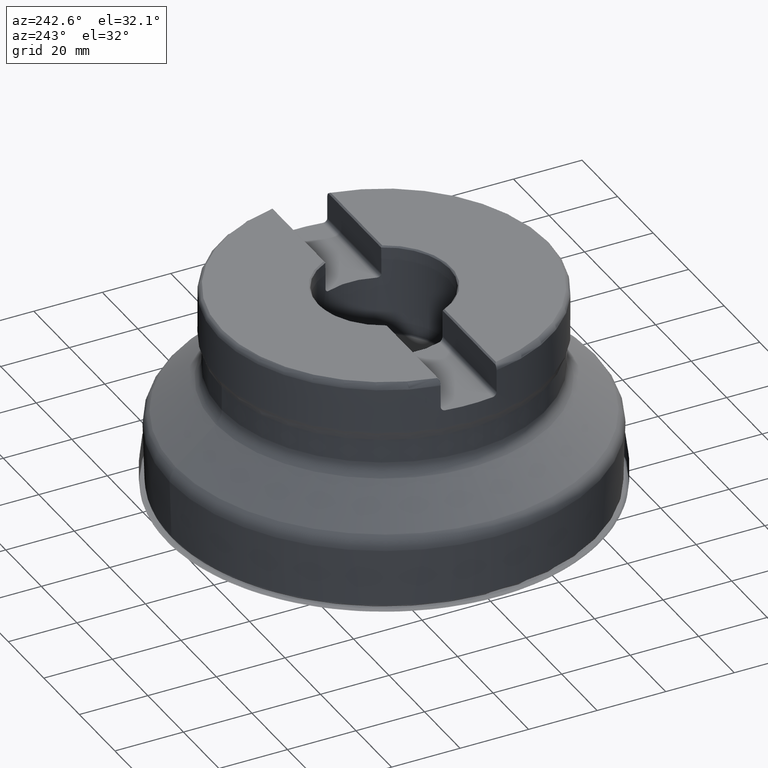
[diagram: clean part render]
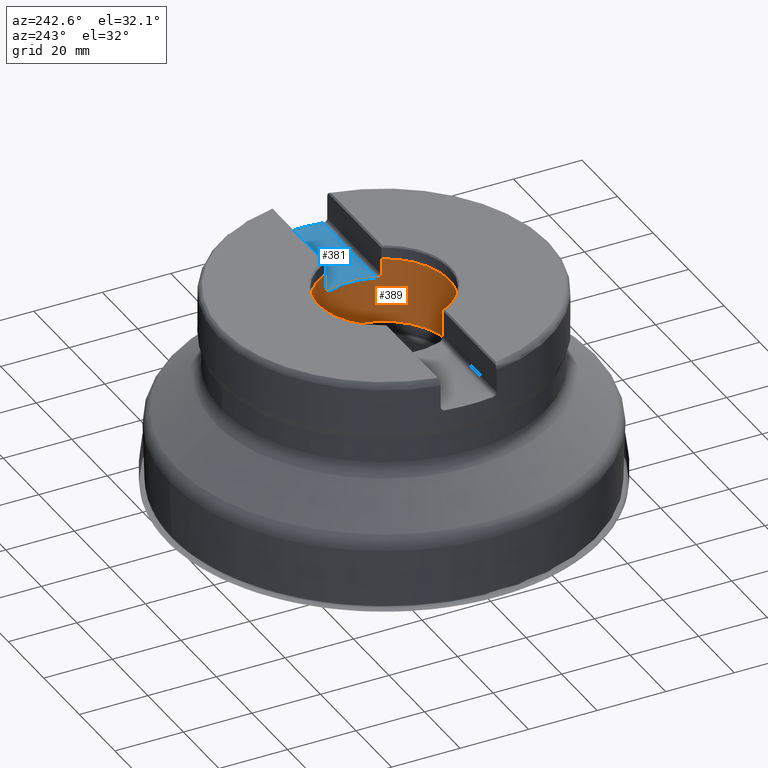
[diagram: same view with the hole feature highlighted: cylindrical wall and planar end face, labeled with their STEP entity ids]
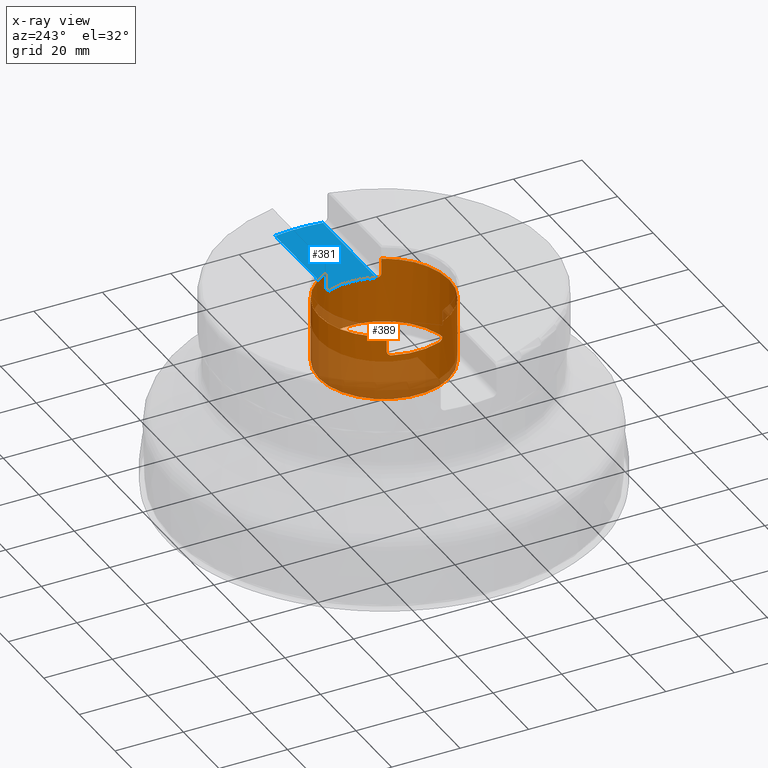
[diagram: x-ray of the same camera — body ghosted, the hole faces saturated]
A machine part, auxiliary view. The highlighted faces form one hole feature of diameter 38.1 mm: the cylindrical wall (entity #389, orange) and its adjacent planar end face (entity #381, blue) — they share a circular edge in the B-rep.
The next image is the same camera in x-ray (body ghosted, the hole faces saturated) — the bore reads through the body.
Wall:
#165=CYLINDRICAL_SURFACE('',#1260,19.05);
#188=FACE_BOUND('',#512,.T.);
#189=FACE_BOUND('',#513,.T.);
#327=LINE('',#2218,#354);
#328=LINE('',#2228,#355);
#329=LINE('',#2238,#356);
#330=LINE('',#2248,#357);
#354=VECTOR('',#1456,1.);
#355=VECTOR('',#1459,1.);
#356=VECTOR('',#1462,1.);
#357=VECTOR('',#1465,1.);
#389=ADVANCED_FACE('',(#188,#189),#165,.F.);
#512=EDGE_LOOP('',(#790));
#513=EDGE_LOOP('',(#791,#792,#793,#794,#795,#796,#797,#798,#799,#800,#801,
#802));
#630=CIRCLE('',#1242,19.05);
#631=CIRCLE('',#1246,19.05);
#634=CIRCLE('',#1257,19.05);
#635=CIRCLE('',#1258,19.05);
#636=CIRCLE('',#1259,19.05);
#790=ORIENTED_EDGE('',*,*,#1088,.T.);
#791=ORIENTED_EDGE('',*,*,#1089,.T.);
#792=ORIENTED_EDGE('',*,*,#1087,.T.);
#793=ORIENTED_EDGE('',*,*,#1074,.F.);
#794=ORIENTED_EDGE('',*,*,#1072,.T.);
#795=ORIENTED_EDGE('',*,*,#1077,.F.);
#796=ORIENTED_EDGE('',*,*,#1083,.T.);
#797=ORIENTED_EDGE('',*,*,#1090,.T.);
#798=ORIENTED_EDGE('',*,*,#1081,.T.);
#799=ORIENTED_EDGE('',*,*,#1069,.F.);
#800=ORIENTED_EDGE('',*,*,#1065,.T.);
#801=ORIENTED_EDGE('',*,*,#1068,.F.);
#802=ORIENTED_EDGE('',*,*,#1085,.T.);
#957=VERTEX_POINT('',#2112);
#958=VERTEX_POINT('',#2114);
#959=VERTEX_POINT('',#2118);
#960=VERTEX_POINT('',#2155);
#961=VERTEX_POINT('',#2159);
#962=VERTEX_POINT('',#2161);
#963=VERTEX_POINT('',#2183);
#964=VERTEX_POINT('',#2187);
#967=VERTEX_POINT('',#2217);
#968=VERTEX_POINT('',#2227);
#969=VERTEX_POINT('',#2237);
#970=VERTEX_POINT('',#2247);
#971=VERTEX_POINT('',#2251);
#1065=EDGE_CURVE('',#958,#957,#630,.T.);
#1068=EDGE_CURVE('',#959,#957,#1165,.T.);
#1069=EDGE_CURVE('',#958,#960,#1166,.T.);
#1072=EDGE_CURVE('',#962,#961,#631,.T.);
#1074=EDGE_CURVE('',#962,#963,#1167,.T.);
#1077=EDGE_CURVE('',#964,#961,#1168,.T.);
#1081=EDGE_CURVE('',#967,#960,#327,.T.);
#1083=EDGE_CURVE('',#964,#968,#328,.T.);
#1085=EDGE_CURVE('',#959,#969,#329,.T.);
#1087=EDGE_CURVE('',#970,#963,#330,.T.);
#1088=EDGE_CURVE('',#971,#971,#634,.T.);
#1089=EDGE_CURVE('',#969,#970,#635,.T.);
#1090=EDGE_CURVE('',#968,#967,#636,.T.);
#1165=B_SPLINE_CURVE_WITH_KNOTS('',3,(#2119,#2120,#2121,#2122,#2123,#2124,
#2125,#2126,#2127,#2128,#2129,#2130,#2131,#2132,#2133,#2134,#2135,#2136,
#2137),.UNSPECIFIED.,.F.,.F.,(4,3,3,3,3,3,4),(0.,0.0481344650969136,0.256793733086357,
0.485899813902022,0.724115437210458,0.957794303946057,1.),.UNSPECIFIED.);
#1166=B_SPLINE_CURVE_WITH_KNOTS('',3,(#2139,#2140,#2141,#2142,#2143,#2144,
#2145,#2146,#2147,#2148,#2149,#2150,#2151,#2152,#2153,#2154),
 .UNSPECIFIED.,.F.,.F.,(4,3,3,3,3,4),(0.,0.199649947265107,0.417311911727187,
0.616823962392896,0.808136783022549,1.),.UNSPECIFIED.);
#1167=B_SPLINE_CURVE_WITH_KNOTS('',3,(#2164,#2165,#2166,#2167,#2168,#2169,
#2170,#2171,#2172,#2173,#2174,#2175,#2176,#2177,#2178,#2179,#2180,#2181,
#2182),.UNSPECIFIED.,.F.,.F.,(4,3,3,3,3,3,4),(0.,0.0328810077300014,0.262638717511751,
0.475106128339215,0.670542313208524,0.857098906643067,1.),.UNSPECIFIED.);
#1168=B_SPLINE_CURVE_WITH_KNOTS('',3,(#2188,#2189,#2190,#2191,#2192,#2193,
#2194,#2195,#2196,#2197,#2198,#2199,#2200,#2201,#2202,#2203),
 .UNSPECIFIED.,.F.,.F.,(4,3,3,3,3,4),(0.,0.113707119069026,0.329657157580648,
0.563478178173275,0.801522195229261,1.),.UNSPECIFIED.);
#1242=AXIS2_PLACEMENT_3D('',#2113,#1427,#1428);
#1246=AXIS2_PLACEMENT_3D('',#2160,#1439,#1440);
#1257=AXIS2_PLACEMENT_3D('',#2250,#1468,#1469);
#1258=AXIS2_PLACEMENT_3D('',#2252,#1470,#1471);
#1259=AXIS2_PLACEMENT_3D('',#2253,#1472,#1473);
#1260=AXIS2_PLACEMENT_3D('',#2254,#1474,#1475);
#1427=DIRECTION('',(4.47319432837584E-16,1.98625540747081E-15,1.));
#1428=DIRECTION('',(1.08268785724004E-15,-1.,1.82123199577618E-15));
#1439=DIRECTION('',(4.47319432837584E-16,1.98625540747081E-15,1.));
#1440=DIRECTION('',(1.08268785724004E-15,-1.,1.82123199577618E-15));
#1456=DIRECTION('',(-4.47319432837584E-16,-1.56003342320133E-15,-1.));
#1459=DIRECTION('',(4.47319432837584E-16,1.56003342320133E-15,1.));
#1462=DIRECTION('',(4.47319432837584E-16,1.56003342320133E-15,1.));
#1465=DIRECTION('',(-4.47319432837584E-16,-1.56003342320133E-15,-1.));
#1468=DIRECTION('',(-4.47319432837584E-16,-1.56003342320133E-15,-1.));
#1469=DIRECTION('',(-1.08268785724004E-15,1.,-1.45698559662094E-15));
#1470=DIRECTION('',(4.47319432837584E-16,1.56003342320133E-15,1.));
#1471=DIRECTION('',(-1.08268785724004E-15,1.,-1.45698559662094E-15));
#1472=DIRECTION('',(4.47319432837584E-16,1.56003342320133E-15,1.));
#1473=DIRECTION('',(-1.08268785724004E-15,1.,-1.45698559662094E-15));
#1474=DIRECTION('',(-4.47319432837584E-16,-1.56003342320133E-15,-1.));
#1475=DIRECTION('',(-1.08268785724004E-15,1.,-1.56003342320133E-15));
#2112=CARTESIAN_POINT('',(-17.7408821652137,-6.93999999999994,50.795));
#2113=CARTESIAN_POINT('',(2.27215905909851E-14,7.92418977315114E-14,50.795));
#2114=CARTESIAN_POINT('',(-17.7408821652137,6.94000000000006,50.795));
#2118=CARTESIAN_POINT('',(-17.2233243016556,-8.13999999999994,51.995));
#2119=CARTESIAN_POINT('',(-17.2233243016556,-8.13999999999994,51.995));
#2120=CARTESIAN_POINT('',(-17.2233243016556,-8.13999999999994,51.9632646299375));
#2121=CARTESIAN_POINT('',(-17.2239208032338,-8.13873822481616,51.9314988790552));
#2122=CARTESIAN_POINT('',(-17.2251081179414,-8.13622457440972,51.8998855027973));
#2123=CARTESIAN_POINT('',(-17.2301998868616,-8.12544484858475,51.7643123429062));
#2124=CARTESIAN_POINT('',(-17.2466833492669,-8.09061267585695,51.6289780951554));
#2125=CARTESIAN_POINT('',(-17.2719943273899,-8.03621253791905,51.506821680419));
#2126=CARTESIAN_POINT('',(-17.299752492761,-7.97655273268561,51.372854595271));
#2127=CARTESIAN_POINT('',(-17.3389347623345,-7.89150980117864,51.2500942850399));
#2128=CARTESIAN_POINT('',(-17.3838965470954,-7.79118995018618,51.1491420517002));
#2129=CARTESIAN_POINT('',(-17.4306825901002,-7.68679976888611,51.0440938300699));
#2130=CARTESIAN_POINT('',(-17.4851425768285,-7.56259915675178,50.9589714875711));
#2131=CARTESIAN_POINT('',(-17.5411477916374,-7.4303858683068,50.8997732197554));
#2132=CARTESIAN_POINT('',(-17.5961605129175,-7.30051559084108,50.8416240309928));
#2133=CARTESIAN_POINT('',(-17.654230152314,-7.15917925220164,50.806687098459));
#2134=CARTESIAN_POINT('',(-17.7103275681265,-7.01760624641017,50.7975121000536));
#2135=CARTESIAN_POINT('',(-17.7205551364034,-6.99179494009743,50.7958393327563));
#2136=CARTESIAN_POINT('',(-17.7307493600383,-6.96590272372035,50.795));
#2137=CARTESIAN_POINT('',(-17.7408821652137,-6.93999999999994,50.795));
#2139=CARTESIAN_POINT('',(-17.7408821652137,6.94000000000006,50.795));
#2140=CARTESIAN_POINT('',(-17.6934245699815,7.06131694594519,50.795));
#2141=CARTESIAN_POINT('',(-17.644213349221,7.18330655195581,50.8136984276106));
#2142=CARTESIAN_POINT('',(-17.5962702416417,7.29888851696711,50.8499240058454));
#2143=CARTESIAN_POINT('',(-17.5439404665725,7.4250459259565,50.8894641286387));
#2144=CARTESIAN_POINT('',(-17.4919085157504,7.54648815902288,50.9508955302172));
#2145=CARTESIAN_POINT('',(-17.4446275718405,7.65424515414695,51.0307106970532));
#2146=CARTESIAN_POINT('',(-17.4012458849819,7.75311543533684,51.1039435111197));
#2147=CARTESIAN_POINT('',(-17.3608924703755,7.84273006959028,51.194390243678));
#2148=CARTESIAN_POINT('',(-17.3273844436799,7.91607531172609,51.2969477198383));
#2149=CARTESIAN_POINT('',(-17.2952664968743,7.9863778277998,51.3952506009289));
#2150=CARTESIAN_POINT('',(-17.2687419754388,8.04330950839282,51.5071211798141));
#2151=CARTESIAN_POINT('',(-17.2508576748312,8.08148559874474,51.6248505330836));
#2152=CARTESIAN_POINT('',(-17.2329444570006,8.11972341622495,51.7427702435851));
#2153=CARTESIAN_POINT('',(-17.2233243016556,8.14000000000006,51.869747965352));
#2154=CARTESIAN_POINT('',(-17.2233243016556,8.14000000000006,51.995));
#2155=CARTESIAN_POINT('',(-17.2233243016556,8.14000000000006,51.995));
#2159=CARTESIAN_POINT('',(17.7408821652138,6.9400000000001,50.795));
#2160=CARTESIAN_POINT('',(2.27215905909851E-14,7.92418977315114E-14,50.795));
#2161=CARTESIAN_POINT('',(17.7408821652138,-6.9399999999999,50.795));
#2164=CARTESIAN_POINT('',(17.7408821652138,-6.9399999999999,50.795));
#2165=CARTESIAN_POINT('',(17.7329927750524,-6.96016783014514,50.795));
#2166=CARTESIAN_POINT('',(17.7250667877108,-6.98032773767888,50.79550866405));
#2167=CARTESIAN_POINT('',(17.7171174226801,-7.00044643083309,50.7965233715255));
#2168=CARTESIAN_POINT('',(17.6620968703469,-7.13969549101529,50.8035465445144));
#2169=CARTESIAN_POINT('',(17.60506594515,-7.27898727361974,50.8354287069393));
#2170=CARTESIAN_POINT('',(17.5507618796215,-7.40764857730331,50.8898733972318));
#2171=CARTESIAN_POINT('',(17.5004749841555,-7.52679209751479,50.9402905146754));
#2172=CARTESIAN_POINT('',(17.4513170471123,-7.63973970760563,51.0112734473575));
#2173=CARTESIAN_POINT('',(17.4075877980755,-7.73811262856083,51.0988882702857));
#2174=CARTESIAN_POINT('',(17.3673331424739,-7.82866913572243,51.1795414852448));
#2175=CARTESIAN_POINT('',(17.3307947076143,-7.90891460654931,51.2761978941705));
#2176=CARTESIAN_POINT('',(17.3015735296707,-7.97233048721619,51.383204474384));
#2177=CARTESIAN_POINT('',(17.2736868491454,-8.03285023791898,51.485324187774));
#2178=CARTESIAN_POINT('',(17.2518765988476,-8.0793697094232,51.5993595911468));
#2179=CARTESIAN_POINT('',(17.238682843892,-8.10742337661628,51.7172903319479));
#2180=CARTESIAN_POINT('',(17.2285828097137,-8.12889891549275,51.8075682336345));
#2181=CARTESIAN_POINT('',(17.2233243016556,-8.1399999999999,51.90165489304));
#2182=CARTESIAN_POINT('',(17.2233243016556,-8.1399999999999,51.995));
#2183=CARTESIAN_POINT('',(17.2233243016556,-8.1399999999999,51.995));
#2187=CARTESIAN_POINT('',(17.2233243016556,8.1400000000001,51.995));
#2188=CARTESIAN_POINT('',(17.2233243016556,8.1400000000001,51.995));
#2189=CARTESIAN_POINT('',(17.2233243016556,8.1400000000001,51.9199609084605));
#2190=CARTESIAN_POINT('',(17.2266976239741,8.13287321250904,51.8445301180732));
#2191=CARTESIAN_POINT('',(17.2332686794924,8.1189254597163,51.7710920715273));
#2192=CARTESIAN_POINT('',(17.2455918179795,8.092768309047,51.6333688069336));
#2193=CARTESIAN_POINT('',(17.2697610805654,8.04138023753332,51.4992938610668));
#2194=CARTESIAN_POINT('',(17.3020217389414,7.97135771027762,51.3815659991074));
#2195=CARTESIAN_POINT('',(17.336935877683,7.89557574069848,51.2541548700996));
#2196=CARTESIAN_POINT('',(17.3823601992632,7.79559610464874,51.1413793606732));
#2197=CARTESIAN_POINT('',(17.4321859919599,7.68253809243535,51.0523244559857));
#2198=CARTESIAN_POINT('',(17.4829692132788,7.56730761148601,50.9615583148061));
#2199=CARTESIAN_POINT('',(17.5398485516773,7.43494875308072,50.8923411848618));
#2200=CARTESIAN_POINT('',(17.5969866380471,7.29716117818375,50.8493840552792));
#2201=CARTESIAN_POINT('',(17.644701332765,7.182097960463,50.8135115496667));
#2202=CARTESIAN_POINT('',(17.6936585920029,7.06071871005114,50.795));
#2203=CARTESIAN_POINT('',(17.7408821652138,6.9400000000001,50.795));
#2217=CARTESIAN_POINT('',(-17.2233243016556,8.14000000000007,56.525));
#2218=CARTESIAN_POINT('',(-17.2233243016556,8.13999999999997,-6.47604945330146E-15));
#2227=CARTESIAN_POINT('',(17.2233243016556,8.14000000000011,56.525));
#2228=CARTESIAN_POINT('',(17.2233243016556,8.14000000000001,-2.18847047696902E-14));
#2237=CARTESIAN_POINT('',(-17.2233243016556,-8.13999999999993,56.525));
#2238=CARTESIAN_POINT('',(-17.2233243016556,-8.14000000000005,2.48481148629644E-14));
#2247=CARTESIAN_POINT('',(17.2233243016556,-8.13999999999989,56.525));
#2248=CARTESIAN_POINT('',(17.2233243016556,-8.14000000000001,9.43945954657567E-15));
#2250=CARTESIAN_POINT('',(1.67301941075585E-14,5.83468100611529E-14,37.401));
#2251=CARTESIAN_POINT('',(-3.89500957286432E-15,19.0500000000001,37.401));
#2252=CARTESIAN_POINT('',(2.52847309411445E-14,8.8180889246455E-14,56.525));
#2253=CARTESIAN_POINT('',(2.52847309411445E-14,8.8180889246455E-14,56.525));
#2254=CARTESIAN_POINT('',(0.,0.,0.));
End face:
#293=PLANE('',#1247);
#323=LINE('',#2158,#350);
#324=LINE('',#2162,#351);
#350=VECTOR('',#1438,1.);
#351=VECTOR('',#1441,1.);
#381=ADVANCED_FACE('',(#463),#293,.T.);
#463=FACE_OUTER_BOUND('',#503,.T.);
#503=EDGE_LOOP('',(#752,#753,#754,#755));
#613=CIRCLE('',#1216,48.35);
#631=CIRCLE('',#1246,19.05);
#752=ORIENTED_EDGE('',*,*,#1042,.T.);
#753=ORIENTED_EDGE('',*,*,#1071,.T.);
#754=ORIENTED_EDGE('',*,*,#1072,.F.);
#755=ORIENTED_EDGE('',*,*,#1073,.T.);
#936=VERTEX_POINT('',#2014);
#937=VERTEX_POINT('',#2016);
#961=VERTEX_POINT('',#2159);
#962=VERTEX_POINT('',#2161);
#1042=EDGE_CURVE('',#937,#936,#613,.T.);
#1071=EDGE_CURVE('',#936,#961,#323,.T.);
#1072=EDGE_CURVE('',#962,#961,#631,.T.);
#1073=EDGE_CURVE('',#962,#937,#324,.T.);
#1216=AXIS2_PLACEMENT_3D('',#2015,#1372,#1373);
#1246=AXIS2_PLACEMENT_3D('',#2160,#1439,#1440);
#1247=AXIS2_PLACEMENT_3D('',#2163,#1442,#1443);
#1372=DIRECTION('',(4.47319432837584E-16,1.98625540747081E-15,1.));
#1373=DIRECTION('',(0.,-1.,2.00919368468875E-15));
#1438=DIRECTION('',(-1.,-1.08268785724004E-15,4.47319432837586E-16));
#1439=DIRECTION('',(4.47319432837584E-16,1.98625540747081E-15,1.));
#1440=DIRECTION('',(1.08268785724004E-15,-1.,1.82123199577618E-15));
#1441=DIRECTION('',(1.,1.08268785724004E-15,-4.47319432837586E-16));
#1442=DIRECTION('',(4.47319432837584E-16,1.98625540747081E-15,1.));
#1443=DIRECTION('',(1.08246744900953E-15,-1.,1.98452365651747E-15));
#2014=CARTESIAN_POINT('',(47.8493354185823,6.94000000000013,50.795));
#2015=CARTESIAN_POINT('',(0.,5.95040752439693E-14,50.795));
#2016=CARTESIAN_POINT('',(47.8493354185824,-6.93999999999987,50.795));
#2158=CARTESIAN_POINT('',(-67.,6.94000000000001,50.795));
#2159=CARTESIAN_POINT('',(17.7408821652138,6.9400000000001,50.795));
#2160=CARTESIAN_POINT('',(2.27215905909851E-14,7.92418977315114E-14,50.795));
#2161=CARTESIAN_POINT('',(17.7408821652138,-6.9399999999999,50.795));
#2162=CARTESIAN_POINT('',(-67.,-6.94,50.795));
#2163=CARTESIAN_POINT('',(-67.,8.14000000000001,50.795));